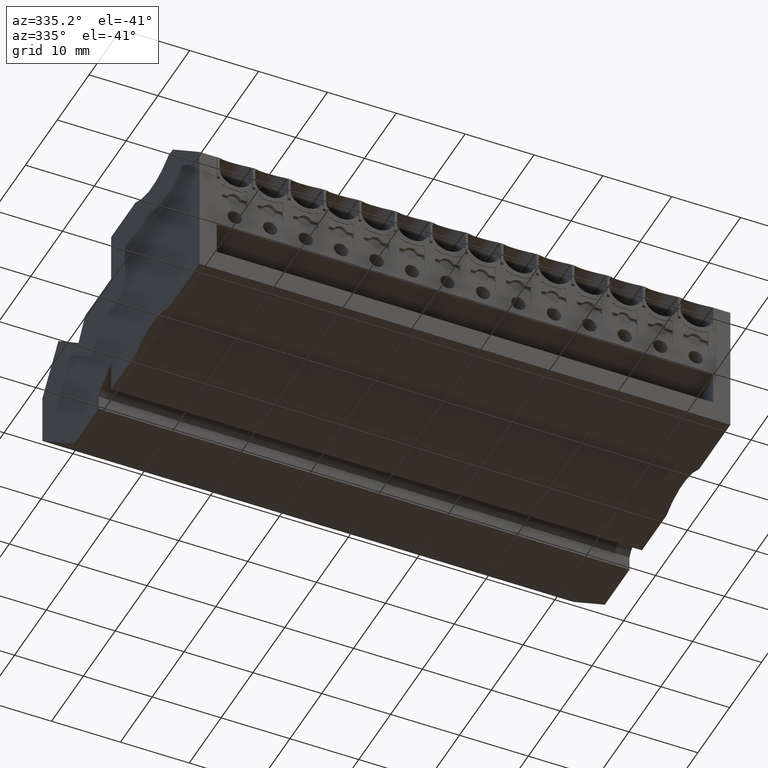
[diagram: clean part render]
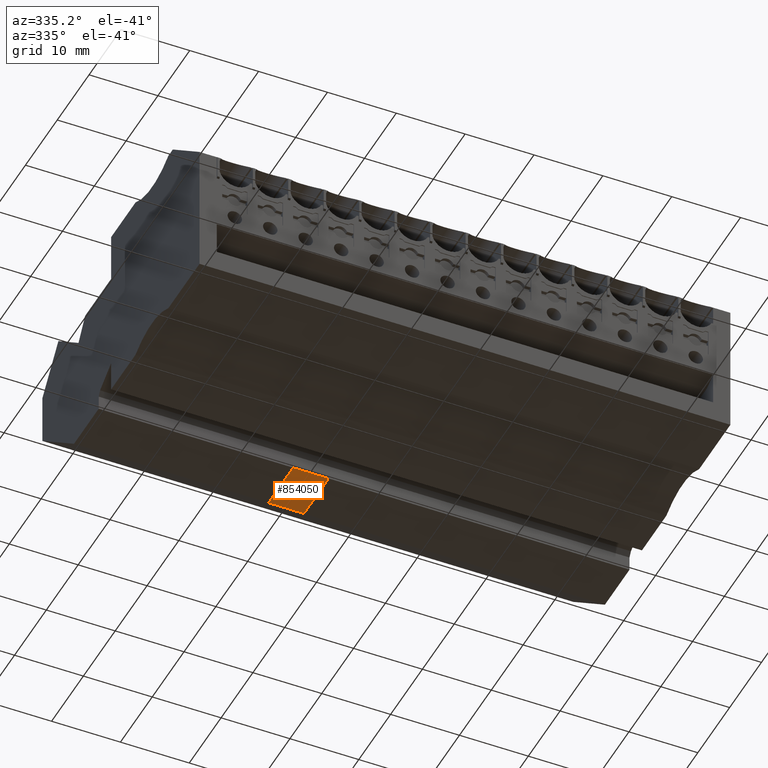
[diagram: same view with one face highlighted and labeled with its STEP entity id]
A machine part, auxiliary view. The second image highlights one B-rep face of the part: STEP entity #854050.
In plain terms, the highlighted planar face has unit normal (0, 0, -1).
Its self-contained STEP definition (entity closure, byte-faithful):
#46640=CARTESIAN_POINT('',(432.124069231659,670.634347625639,
68.1199999952488));
#46650=DIRECTION('',(-1.20456572490157E-9,-1.,5.82229711732946E-10));
#46660=DIRECTION('',(1.,-1.20456572494379E-9,-7.2511997674725E-11));
#46670=AXIS2_PLACEMENT_3D('',#46640,#46650,#46660);
#46680=PLANE('',#46670);
#560300=CARTESIAN_POINT('',(452.153158752587,670.634347619503,
99.0199999980518));
#560310=VERTEX_POINT('',#560300);
#560640=CARTESIAN_POINT('',(459.905573335206,670.634347604264,
99.0199999974377));
#560650=VERTEX_POINT('',#560640);
#560680=CARTESIAN_POINT('',(436.268902530905,670.634347638637,
99.0199999993104));
#560690=DIRECTION('',(-1.,1.20456572494379E-9,7.92260575924475E-11));
#560700=VECTOR('',#560690,1.);
#560710=LINE('',#560680,#560700);
#560720=EDGE_CURVE('',#560650,#560310,#560710,.T.);
#744920=CARTESIAN_POINT('',(459.905573337582,670.634347607166,
93.8699999973205));
#744930=VERTEX_POINT('',#744920);
#789100=CARTESIAN_POINT('',(452.153158757055,670.634347616505,
93.8699999979347));
#789110=VERTEX_POINT('',#789100);
#789140=CARTESIAN_POINT('',(436.268902531636,670.634347635638,
93.8699999991932));
#789150=DIRECTION('',(1.,-1.20456572494379E-9,-7.92260575924475E-11));
#789160=VECTOR('',#789150,1.);
#789170=LINE('',#789140,#789160);
#789180=EDGE_CURVE('',#789110,#744930,#789170,.T.);
#833910=CARTESIAN_POINT('',(459.905573337582,670.634347599839,
93.8700000009573));
#833920=DIRECTION('',(2.48917491584714E-10,5.5633326625038E-10,1.));
#833930=VECTOR('',#833920,1.);
#833940=LINE('',#833910,#833930);
#833950=CARTESIAN_POINT('',(459.905573332292,670.634347601313,
96.5199999818239));
#833960=VERTEX_POINT('',#833950);
#833970=EDGE_CURVE('',#744930,#833960,#833940,.T.);
#833990=CARTESIAN_POINT('',(459.90557333048,670.634347600316,
99.0199999745712));
#834000=DIRECTION('',(-3.51177059947896E-10,-5.0369111157255E-10,-1.));
#834010=VECTOR('',#834000,1.);
#834020=LINE('',#833990,#834010);
#834030=EDGE_CURVE('',#560650,#833960,#834020,.T.);
#846070=CARTESIAN_POINT('',(452.15315875154,670.634347610972,
99.0199999771137));
#846080=DIRECTION('',(1.64639387953552E-10,5.03691111828967E-10,1.));
#846090=VECTOR('',#846080,1.);
#846100=LINE('',#846070,#846090);
#846110=CARTESIAN_POINT('',(452.153158751129,670.634347609713,
96.5199999837046));
#846120=VERTEX_POINT('',#846110);
#846130=EDGE_CURVE('',#846120,#560310,#846100,.T.);
#846150=CARTESIAN_POINT('',(452.153158752085,670.634347610272,
93.8699999996734));
#846160=DIRECTION('',(9.73617497942318E-11,5.56333266454329E-10,1.));
#846170=VECTOR('',#846160,1.);
#846180=LINE('',#846150,#846170);
#846190=EDGE_CURVE('',#789110,#846120,#846180,.T.);
#853970=ORIENTED_EDGE('',*,*,#846190,.F.);
#853980=ORIENTED_EDGE('',*,*,#846130,.F.);
#853990=ORIENTED_EDGE('',*,*,#560720,.T.);
#854000=ORIENTED_EDGE('',*,*,#834030,.F.);
#854010=ORIENTED_EDGE('',*,*,#833970,.T.);
#854020=ORIENTED_EDGE('',*,*,#789180,.T.);
#854030=EDGE_LOOP('',(#854020,#854010,#854000,#853990,#853980,#853970));
#854040=FACE_OUTER_BOUND('',#854030,.T.);
#854050=ADVANCED_FACE('',(#854040),#46680,.T.);